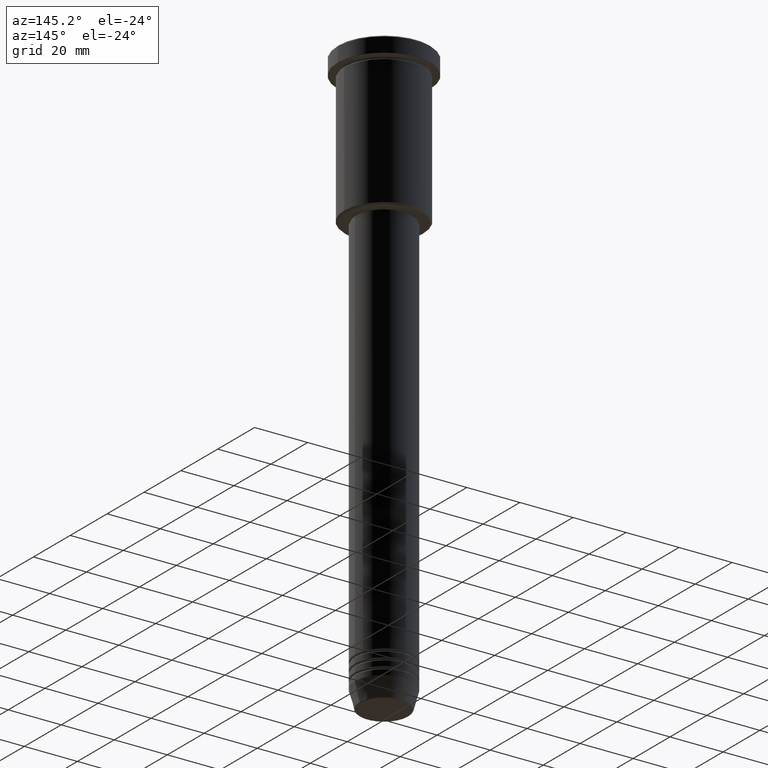
[diagram: clean part render]
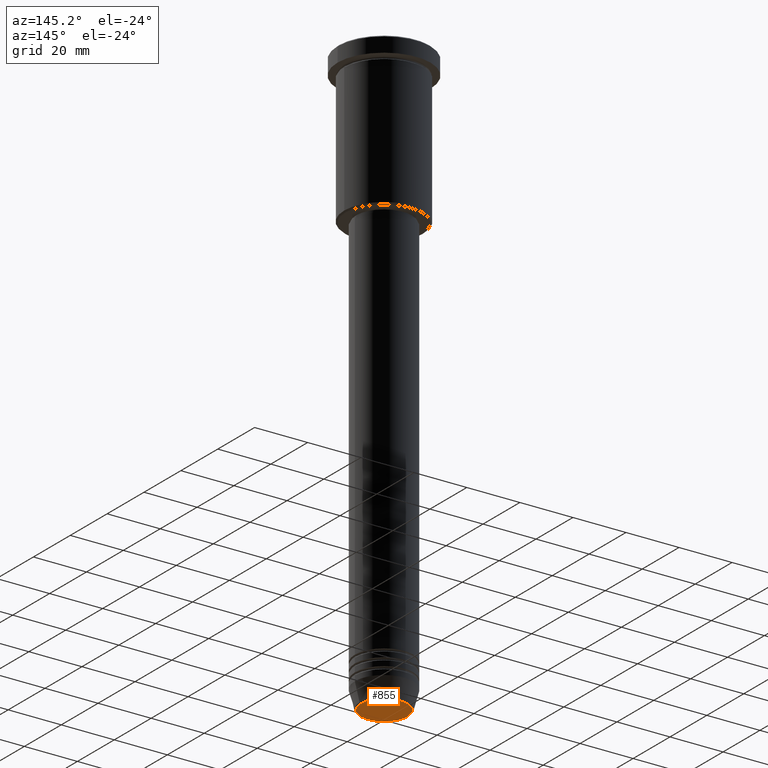
[diagram: same view with one face highlighted and labeled with its STEP entity id]
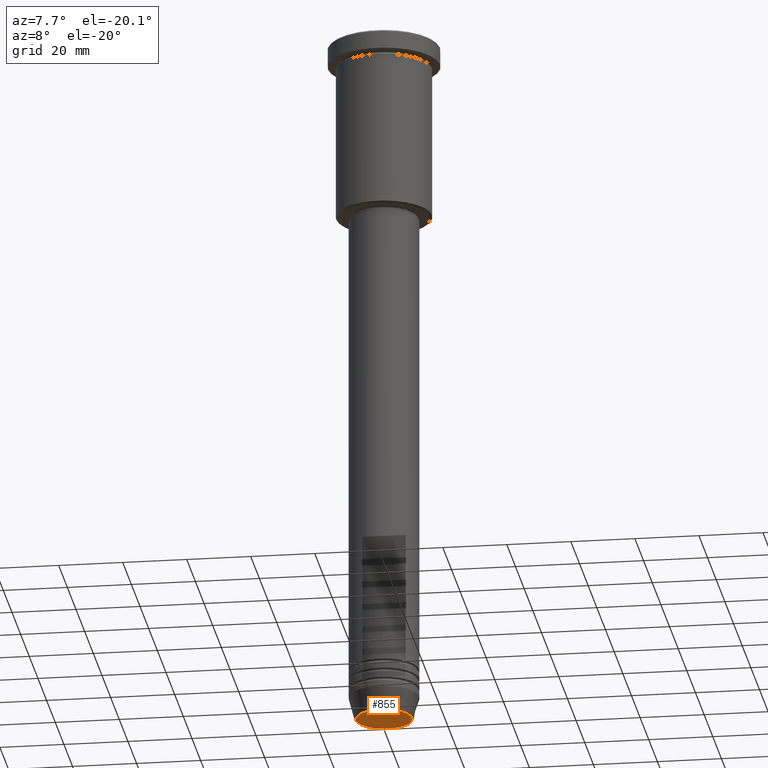
[diagram: same view with one face highlighted and labeled with its STEP entity id]
A machine part, auxiliary view. The second image highlights one B-rep face of the part: STEP entity #855.
A second angle (auxiliary view) of the same face is appended — the face is thin or edge-on in the first view.
In plain terms, the highlighted planar face has unit normal (0, -0, 1).
Its self-contained STEP definition (entity closure, byte-faithful):
#79 = FACE_OUTER_BOUND ( 'NONE', #211, .T. ) ;
#130 = EDGE_CURVE ( 'NONE', #571, #794, #396, .T. ) ;
#193 = DIRECTION ( 'NONE',  ( 1.000000000000000000, 0.000000000000000000, 0.000000000000000000 ) ) ;
#211 = EDGE_LOOP ( 'NONE', ( #604, #912 ) ) ;
#231 = CARTESIAN_POINT ( 'NONE',  ( 0.000000000000000000, 0.000000000000000000, -221.0000000000000284 ) ) ;
#358 = CARTESIAN_POINT ( 'NONE',  ( -8.740692158992656502, 1.099999016768739653E-15, -221.0000000000000284 ) ) ;
#396 = CIRCLE ( 'NONE', #416, 8.740692158992656502 ) ;
#403 = DIRECTION ( 'NONE',  ( 1.000000000000000000, 0.000000000000000000, 0.000000000000000000 ) ) ;
#416 = AXIS2_PLACEMENT_3D ( 'NONE', #231, #507, #403 ) ;
#501 = AXIS2_PLACEMENT_3D ( 'NONE', #579, #940, #948 ) ;
#507 = DIRECTION ( 'NONE',  ( 0.000000000000000000, 0.000000000000000000, -1.000000000000000000 ) ) ;
#562 = PLANE ( 'NONE',  #1118 ) ;
#571 = VERTEX_POINT ( 'NONE', #1123 ) ;
#579 = CARTESIAN_POINT ( 'NONE',  ( 0.000000000000000000, 0.000000000000000000, -221.0000000000000284 ) ) ;
#604 = ORIENTED_EDGE ( 'NONE', *, *, #130, .T. ) ;
#794 = VERTEX_POINT ( 'NONE', #358 ) ;
#855 = ADVANCED_FACE ( 'NONE', ( #79 ), #562, .F. ) ;
#912 = ORIENTED_EDGE ( 'NONE', *, *, #1085, .T. ) ;
#926 = CARTESIAN_POINT ( 'NONE',  ( 0.000000000000000000, 0.000000000000000000, -221.0000000000000284 ) ) ;
#940 = DIRECTION ( 'NONE',  ( 0.000000000000000000, 0.000000000000000000, -1.000000000000000000 ) ) ;
#948 = DIRECTION ( 'NONE',  ( 1.000000000000000000, 0.000000000000000000, 0.000000000000000000 ) ) ;
#956 = CIRCLE ( 'NONE', #501, 8.740692158992656502 ) ;
#1010 = DIRECTION ( 'NONE',  ( 0.000000000000000000, -0.000000000000000000, 1.000000000000000000 ) ) ;
#1085 = EDGE_CURVE ( 'NONE', #794, #571, #956, .T. ) ;
#1118 = AXIS2_PLACEMENT_3D ( 'NONE', #926, #1010, #193 ) ;
#1123 = CARTESIAN_POINT ( 'NONE',  ( 8.740692158992656502, 0.000000000000000000, -221.0000000000000284 ) ) ;